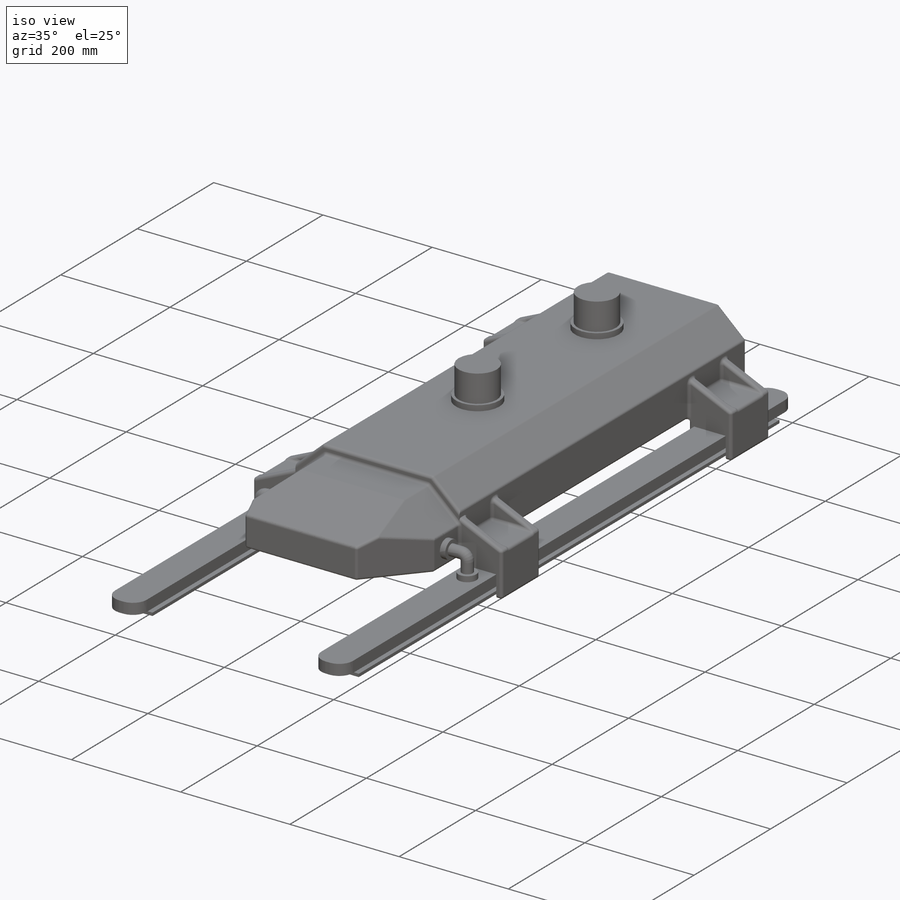
[diagram: iso view]
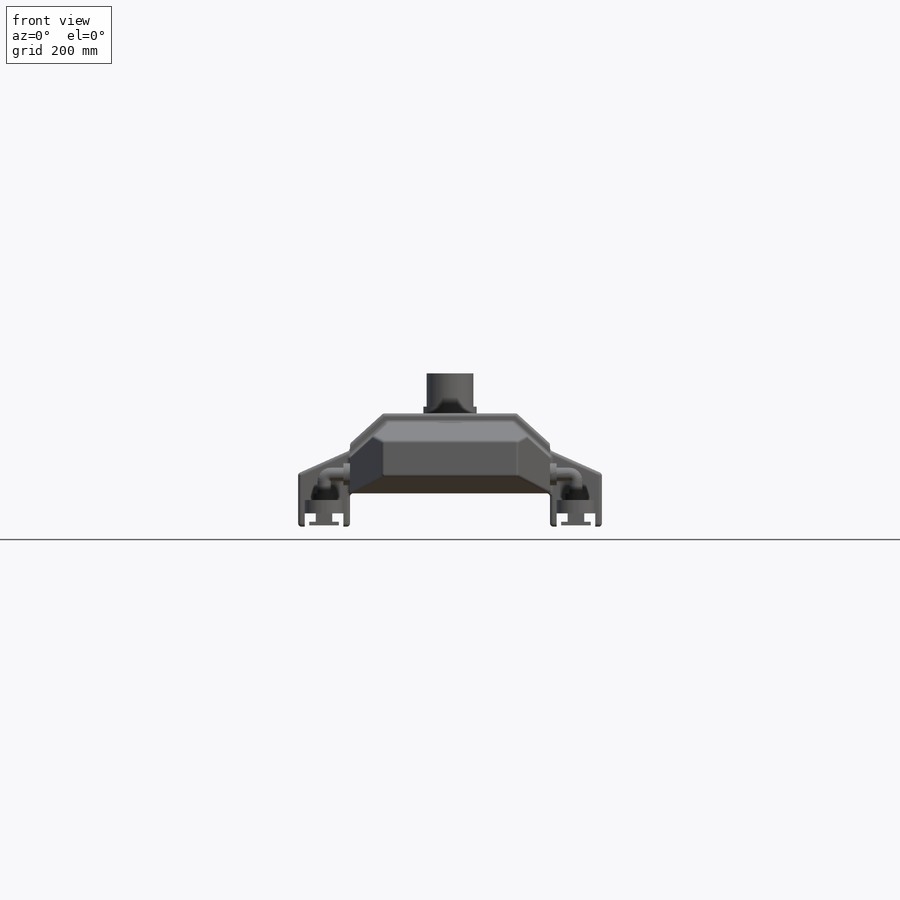
[diagram: front view]
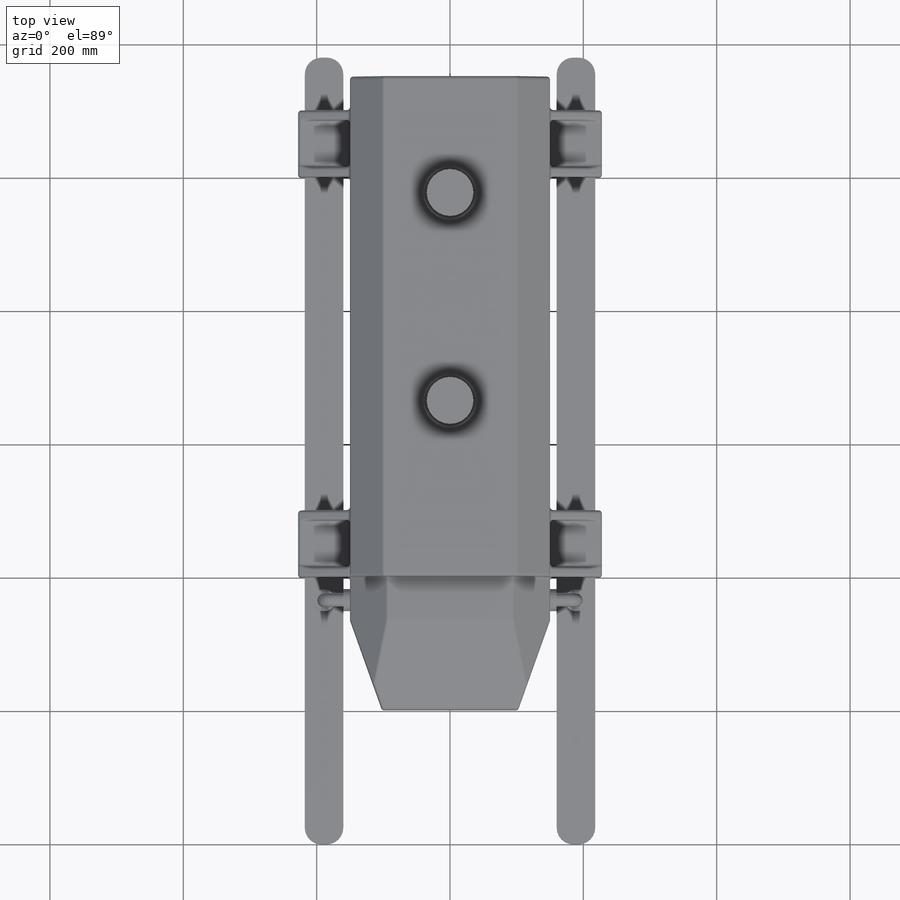
[diagram: top view]
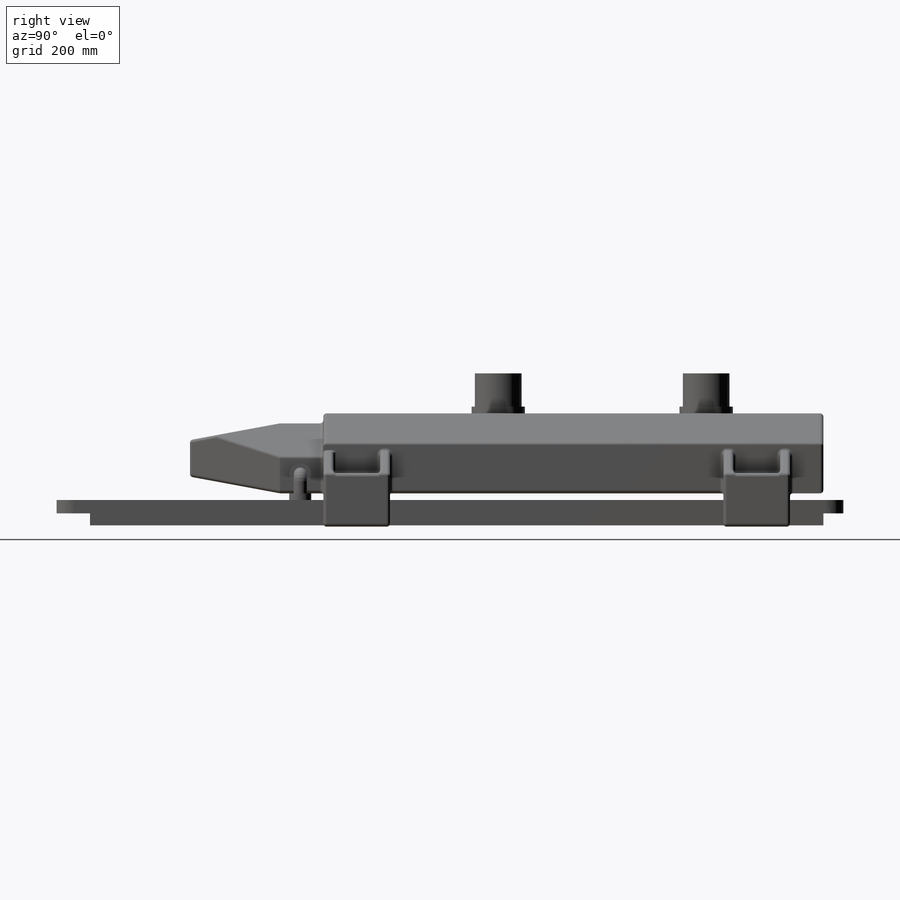
[diagram: right view]
SOLIDWORKS PART (.sldprt)
format: sldprt  version: not decoded by parser v0  size: 1,277,952 bytes
history: native  units: mm
features: sketch x18, extrude x10, fillet x9, cut_extrude x4, sweep x2, material x1, mirror x1 (+16 scaffold rows collapsed)
feature tree (61):
  scaffold x16  (default folders/planes/origin — collapsed)
  material  "Material <not specified>"
  sketch  "Sketch1"  dims[c1.D1=150.0mm c1.D2=120.0mm c1.D3=30.0mm c1.D4=100.0mm c1.D5=60.0mm c1.D6=77.8mm c1.D7=30.0mm c1.D8=50.0mm c1.D9=50.0mm c1.D10=10.0mm c1.D11=10.0mm c1.D12=40.0mm c1.D13=90.0mm c2.D3=10.0mm]
  extrude  "Boss-Extrude1"  Depth=750mm
  sketch  "Sketch3"  dims[c1.D1=50.0mm c1.D2=100.0mm c1.D3=100.0mm c2.D1=50.0mm c2.D2=100.0mm c2.D3=100.0mm]
  cut_extrude  "Cut-Extrude1"  Depth=318mm
  sketch  "Sketch4"  dims[D1=15.0mm]
  extrude  "Boss-Extrude2"  Depth=200mm
  sketch  "Sketch5"  dims[c1.D1=15.0mm c1.D2=15.0mm c1.D3=15.0mm c1.D4=15.0mm c2.D1=15.0mm c2.D2=15.0mm c2.D3=15.0mm c2.D4=15.0mm]
  cut_extrude  "Cut-Extrude2"  Depth=77.8mm
  sketch  "Sketch6"  dims[D1=48.0mm]
  cut_extrude  "Cut-Extrude3"  Depth=153.8mm
  sketch  "Sketch9"  dims[D1=25.0mm D2=25.0mm]
  cut_extrude  "Cut-Extrude4"  Depth=157mm
  mirror  "Mirror1"
  sketch  "Sketch11"  dims[D1=80.0mm D2=80.0mm D3=~311.885517mm]
  fillet  "Fillet5"  Radius=5mm
  fillet  "Fillet6"  Radius=5mm
  fillet  "Fillet7"  Radius=5mm
  fillet  "Fillet8"  Radius=5mm
  fillet  "Fillet9"  Radius=5mm
  fillet  "Fillet10"  Radius=5mm
  fillet  "Fillet11"  Radius=5mm
  sketch  "Sketch12"  dims[D1=20.0mm D2=20.0mm]
  fillet  "Fillet12"  Radius=5mm
  extrude  "Boss-Extrude3"  Depth=400mm
  fillet  "Fillet13"  Radius=25mm
  sketch  "Sketch13"  dims[c1.D1=177.8mm c1.D2=28.0mm c1.D3=28.0mm c1.D4=5.5mm c1.D5=5.5mm c2.D2=57.8mm c2.D1=5.5mm]
  extrude  "Boss-Extrude4"  Depth=350mm
  extrude  "Boss-Extrude5"  Depth=10mm
  sketch  "Sketch14"  dims[D1=70.0mm D2=70.0mm]
  extrude  "Boss-Extrude6"  Depth=50mm
  sketch  "Sketch15"  dims[c1.D1=~23.586323mm c2.D1=30.0deg c3.D1=~24.413182mm c4.D1=60.0deg]
  extrude  "Boss-Extrude7"  Depth=10mm
  sketch  "Sketch17"  dims[D1=20.0mm]
  sketch  "Sketch19"  dims[D1=33.0mm]
  extrude  "Boss-Extrude9"  Depth=10mm
  sketch  "Sketch20"  dims[D1=33.0mm]
  extrude  "Boss-Extrude10"  Depth=10mm
  sketch  "Sketch21"  dims[D1=20.0mm]
  sketch  "3DSketch2"  dims[D1=10.0mm]
  sweep  "Sweep2"
  sketch  "Sketch23"  dims[D1=33.0mm]
  extrude  "Boss-Extrude11"  Depth=10mm
  sketch  "3DSketch3"  dims[D1=10.0mm]
  sweep  "Sweep3"
decode coverage: 41 of 44 modeling features carry decoded parameters
note: ~ marks probable driven/reference dimensions
note: suppression state not decoded; provenance and decode notes live in map.json
